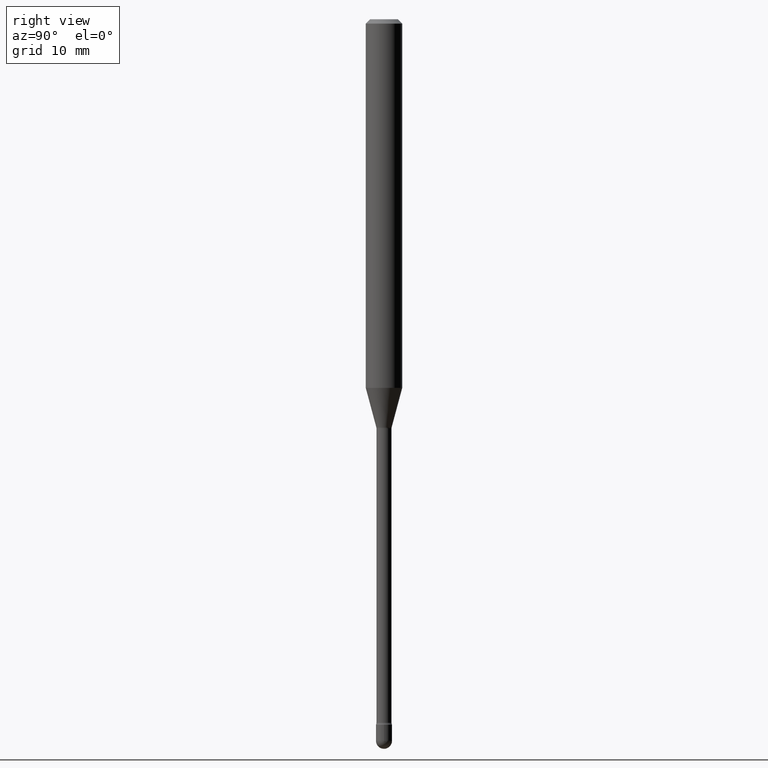
[diagram: clean part render]
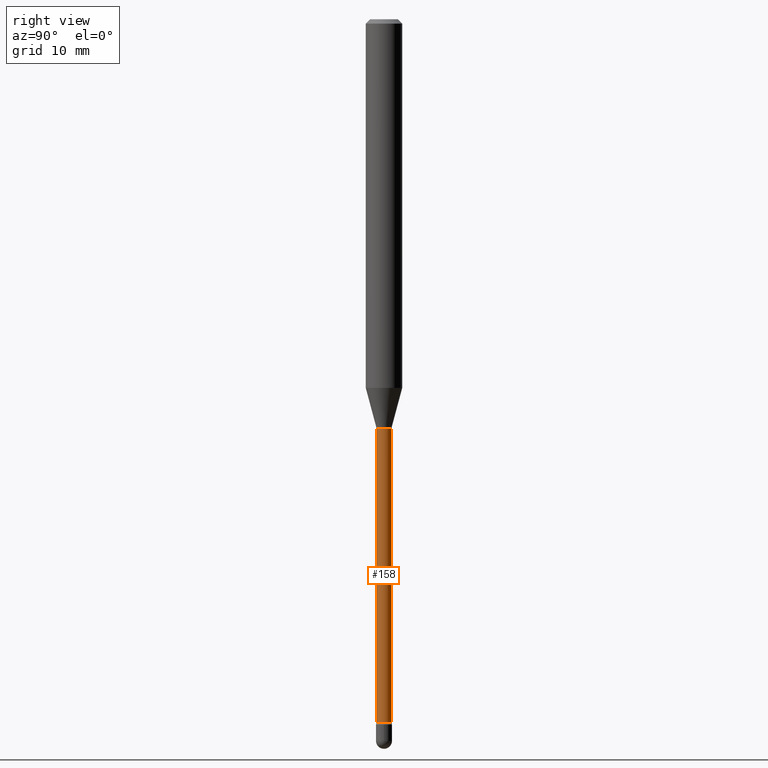
[diagram: same view with one face highlighted and labeled with its STEP entity id]
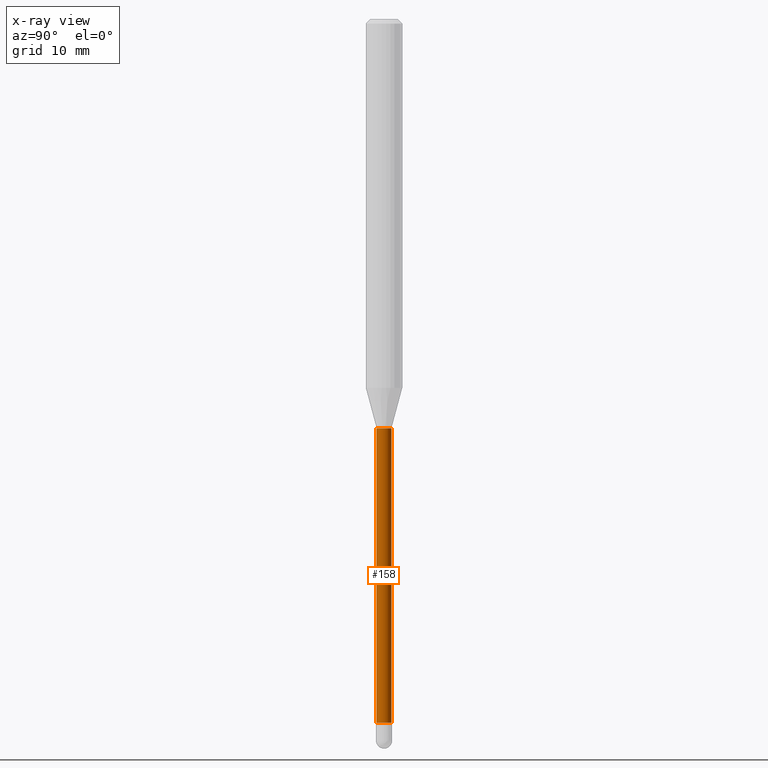
[diagram: x-ray of the same camera — body ghosted, the highlighted face saturated]
A machine part, right view. The second image highlights one B-rep face of the part: STEP entity #158.
The next image is the same camera in x-ray: the body ghosted, the highlighted face saturated — about 0% of this face is hidden behind the body in this view.
In plain terms, the highlighted cylindrical surface (edge-blend (fillet) strip) has radius 0.6566 mm, axis along (-0, 0, 1).
Its self-contained STEP definition (entity closure, byte-faithful):
#15 = DIRECTION ( 'NONE',  ( -2.445420001078101296E-29, 3.491551230534233844E-15, 1.000000000000000000 ) ) ;
#18 = DIRECTION ( 'NONE',  ( -2.445420001078101296E-29, 3.491551230534234238E-15, 1.000000000000000000 ) ) ;
#30 = VERTEX_POINT ( 'NONE', #345 ) ;
#55 = LINE ( 'NONE', #274, #414 ) ;
#57 = AXIS2_PLACEMENT_3D ( 'NONE', #233, #18, #544 ) ;
#58 = FACE_OUTER_BOUND ( 'NONE', #456, .T. ) ;
#64 = DIRECTION ( 'NONE',  ( -6.982962677686265133E-15, -1.000000000000000000, 0.000000000000000000 ) ) ;
#73 = DIRECTION ( 'NONE',  ( -2.445420001078101296E-29, 3.491551230534233844E-15, 1.000000000000000000 ) ) ;
#80 = VECTOR ( 'NONE', #73, 39.37007874015748143 ) ;
#100 = CARTESIAN_POINT ( 'NONE',  ( 5.893854917807127540E-29, -8.415199181239739189E-15, -2.410160592130893509 ) ) ;
#110 = CARTESIAN_POINT ( 'NONE',  ( 1.895372747640661167E-16, 0.02584999999999164702, -2.410160592130893509 ) ) ;
#121 = AXIS2_PLACEMENT_3D ( 'NONE', #292, #467, #385 ) ;
#122 = AXIS2_PLACEMENT_3D ( 'NONE', #100, #399, #64 ) ;
#158 = ADVANCED_FACE ( 'NONE', ( #58 ), #408, .T. ) ;
#184 = CIRCLE ( 'NONE', #121, 0.02584999999999999451 ) ;
#199 = EDGE_CURVE ( 'NONE', #30, #452, #184, .T. ) ;
#233 = CARTESIAN_POINT ( 'NONE',  ( -1.169113584055446105E-44, 1.669184350826100908E-30, 4.780733988912460139E-16 ) ) ;
#234 = CARTESIAN_POINT ( 'NONE',  ( -1.805095852181314535E-16, -0.02585000000000847384, -2.410160592130893509 ) ) ;
#248 = ORIENTED_EDGE ( 'NONE', *, *, #485, .T. ) ;
#274 = CARTESIAN_POINT ( 'NONE',  ( -1.805095852181901743E-16, -0.02585000000000002920, 5.683299982005562177E-16 ) ) ;
#287 = VERTEX_POINT ( 'NONE', #110 ) ;
#292 = CARTESIAN_POINT ( 'NONE',  ( 3.428417186271223769E-29, -4.895066794347240348E-15, -1.401974787463810879 ) ) ;
#345 = CARTESIAN_POINT ( 'NONE',  ( -1.805095852181556863E-16, -0.02585000000000488990, -1.401974787463810879 ) ) ;
#364 = ORIENTED_EDGE ( 'NONE', *, *, #511, .F. ) ;
#366 = CARTESIAN_POINT ( 'NONE',  ( 1.836752971939860809E-16, 0.02585000000000002920, 3.878167995819360074E-16 ) ) ;
#383 = CIRCLE ( 'NONE', #122, 0.02585000000000006043 ) ;
#385 = DIRECTION ( 'NONE',  ( -6.982962677686266711E-15, -1.000000000000000000, 0.000000000000000000 ) ) ;
#399 = DIRECTION ( 'NONE',  ( -2.445420001078101296E-29, 3.491551230534234238E-15, 1.000000000000000000 ) ) ;
#405 = LINE ( 'NONE', #366, #80 ) ;
#408 = CYLINDRICAL_SURFACE ( 'NONE', #57, 0.02585000000000002920 ) ;
#414 = VECTOR ( 'NONE', #15, 39.37007874015748143 ) ;
#452 = VERTEX_POINT ( 'NONE', #472 ) ;
#456 = EDGE_LOOP ( 'NONE', ( #248, #510, #462, #364 ) ) ;
#462 = ORIENTED_EDGE ( 'NONE', *, *, #199, .F. ) ;
#467 = DIRECTION ( 'NONE',  ( -2.445420001078101296E-29, 3.491551230534234238E-15, 1.000000000000000000 ) ) ;
#472 = CARTESIAN_POINT ( 'NONE',  ( 1.836752971940450483E-16, 0.02584999999999509565, -1.401974787463810879 ) ) ;
#485 = EDGE_CURVE ( 'NONE', #519, #287, #383, .T. ) ;
#510 = ORIENTED_EDGE ( 'NONE', *, *, #557, .T. ) ;
#511 = EDGE_CURVE ( 'NONE', #519, #30, #55, .T. ) ;
#519 = VERTEX_POINT ( 'NONE', #234 ) ;
#544 = DIRECTION ( 'NONE',  ( -6.982962677686265922E-15, -1.000000000000000000, 3.491551230534236210E-15 ) ) ;
#557 = EDGE_CURVE ( 'NONE', #287, #452, #405, .T. ) ;